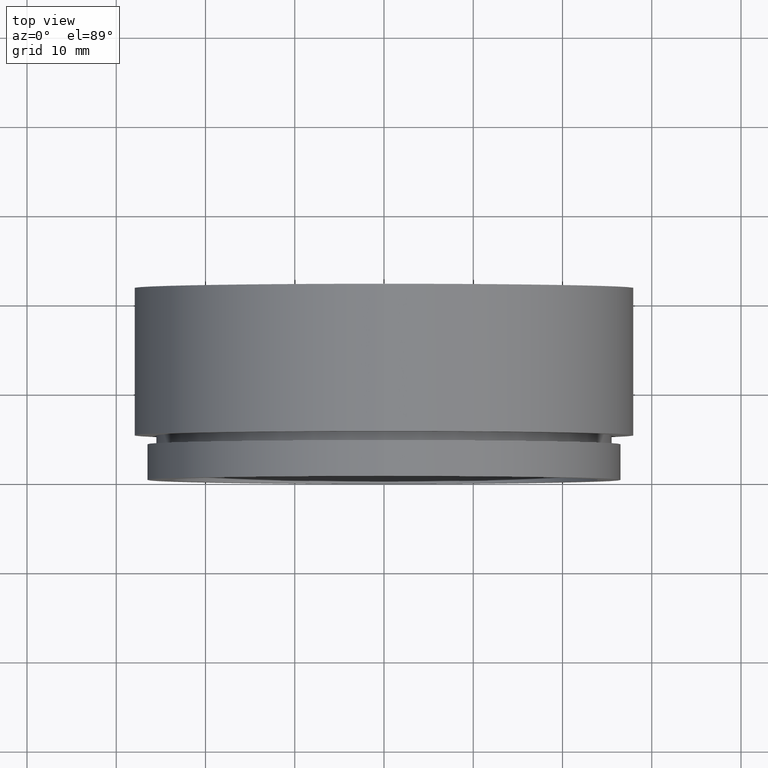
[diagram: clean part render]
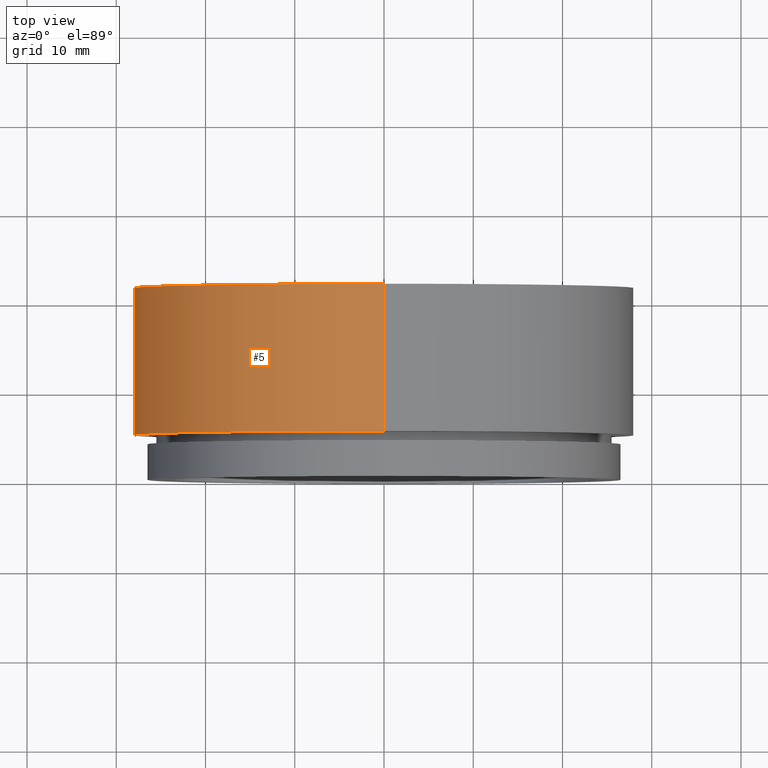
[diagram: same view with one face highlighted and labeled with its STEP entity id]
A machine part, top view. The second image highlights one B-rep face of the part: STEP entity #5.
In plain terms, the highlighted cylindrical surface (partial cylindrical patch) has radius 28 mm, axis along (-0, -1, -0).
Its self-contained STEP definition (entity closure, byte-faithful):
#5 = ADVANCED_FACE ( 'NONE', ( #600 ), #523, .T. ) ;
#9 = DIRECTION ( 'NONE',  ( -0.0000000000000000000, -1.000000000000000000, -0.0000000000000000000 ) ) ;
#16 = DIRECTION ( 'NONE',  ( -0.0000000000000000000, -1.000000000000000000, -0.0000000000000000000 ) ) ;
#27 = EDGE_CURVE ( 'NONE', #498, #351, #465, .T. ) ;
#34 = AXIS2_PLACEMENT_3D ( 'NONE', #281, #492, #248 ) ;
#61 = VECTOR ( 'NONE', #9, 1000.000000000000000 ) ;
#80 = EDGE_LOOP ( 'NONE', ( #637, #403, #451, #470 ) ) ;
#121 = CARTESIAN_POINT ( 'NONE',  ( 3.429011037612589700E-015, 5.000000000000000000, 28.00000000000000400 ) ) ;
#126 = EDGE_CURVE ( 'NONE', #351, #337, #151, .T. ) ;
#151 = CIRCLE ( 'NONE', #522, 28.00000000000000000 ) ;
#160 = EDGE_CURVE ( 'NONE', #498, #165, #505, .T. ) ;
#165 = VERTEX_POINT ( 'NONE', #464 ) ;
#170 = CARTESIAN_POINT ( 'NONE',  ( 0.0000000000000000000, 0.0000000000000000000, -27.99999999999999600 ) ) ;
#229 = DIRECTION ( 'NONE',  ( 0.0000000000000000000, 0.0000000000000000000, -1.000000000000000000 ) ) ;
#248 = DIRECTION ( 'NONE',  ( 0.0000000000000000000, 0.0000000000000000000, -1.000000000000000000 ) ) ;
#281 = CARTESIAN_POINT ( 'NONE',  ( 0.0000000000000000000, 0.0000000000000000000, 0.0000000000000000000 ) ) ;
#330 = EDGE_CURVE ( 'NONE', #165, #337, #441, .T. ) ;
#337 = VERTEX_POINT ( 'NONE', #630 ) ;
#351 = VERTEX_POINT ( 'NONE', #121 ) ;
#382 = DIRECTION ( 'NONE',  ( -0.0000000000000000000, -1.000000000000000000, -0.0000000000000000000 ) ) ;
#403 = ORIENTED_EDGE ( 'NONE', *, *, #160, .T. ) ;
#441 = LINE ( 'NONE', #170, #61 ) ;
#443 = DIRECTION ( 'NONE',  ( 0.0000000000000000000, 0.0000000000000000000, -1.000000000000000000 ) ) ;
#451 = ORIENTED_EDGE ( 'NONE', *, *, #330, .T. ) ;
#460 = CARTESIAN_POINT ( 'NONE',  ( 0.0000000000000000000, 5.000000000000000000, 0.0000000000000000000 ) ) ;
#464 = CARTESIAN_POINT ( 'NONE',  ( 0.0000000000000000000, 21.50000000000000000, -27.99999999999999600 ) ) ;
#465 = LINE ( 'NONE', #641, #484 ) ;
#470 = ORIENTED_EDGE ( 'NONE', *, *, #126, .F. ) ;
#484 = VECTOR ( 'NONE', #16, 1000.000000000000000 ) ;
#490 = CARTESIAN_POINT ( 'NONE',  ( 3.429011037612588900E-015, 21.50000000000000000, 27.99999999999999600 ) ) ;
#492 = DIRECTION ( 'NONE',  ( -0.0000000000000000000, -1.000000000000000000, -0.0000000000000000000 ) ) ;
#498 = VERTEX_POINT ( 'NONE', #490 ) ;
#505 = CIRCLE ( 'NONE', #632, 27.99999999999999600 ) ;
#522 = AXIS2_PLACEMENT_3D ( 'NONE', #460, #661, #229 ) ;
#523 = CYLINDRICAL_SURFACE ( 'NONE', #34, 27.99999999999999600 ) ;
#546 = CARTESIAN_POINT ( 'NONE',  ( 0.0000000000000000000, 21.50000000000000000, 0.0000000000000000000 ) ) ;
#600 = FACE_OUTER_BOUND ( 'NONE', #80, .T. ) ;
#630 = CARTESIAN_POINT ( 'NONE',  ( 0.0000000000000000000, 5.000000000000000000, -28.00000000000000000 ) ) ;
#632 = AXIS2_PLACEMENT_3D ( 'NONE', #546, #382, #443 ) ;
#637 = ORIENTED_EDGE ( 'NONE', *, *, #27, .F. ) ;
#641 = CARTESIAN_POINT ( 'NONE',  ( 3.429011037612588900E-015, 0.0000000000000000000, 27.99999999999999600 ) ) ;
#661 = DIRECTION ( 'NONE',  ( -0.0000000000000000000, -1.000000000000000000, -0.0000000000000000000 ) ) ;